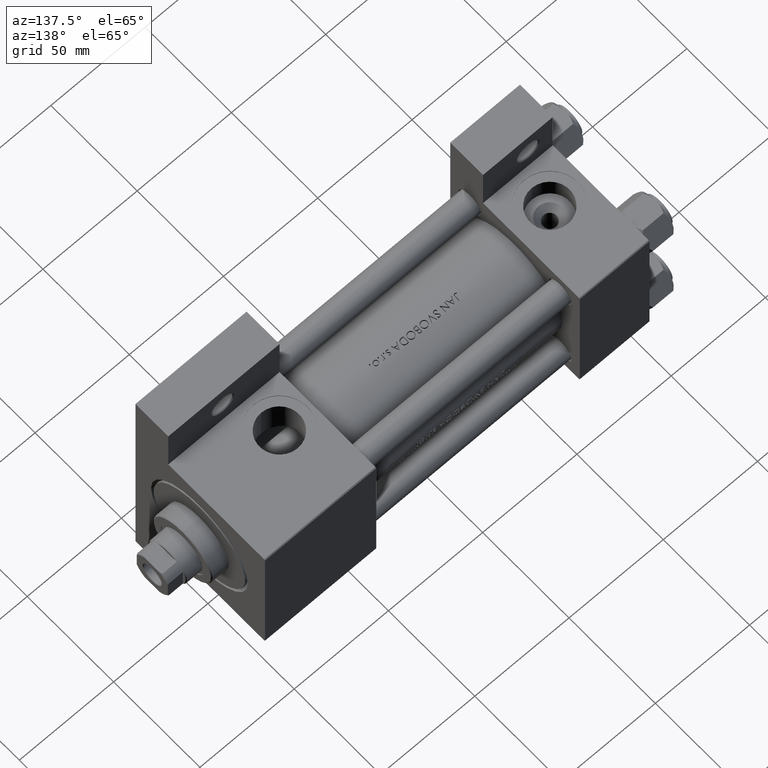
[diagram: clean part render]
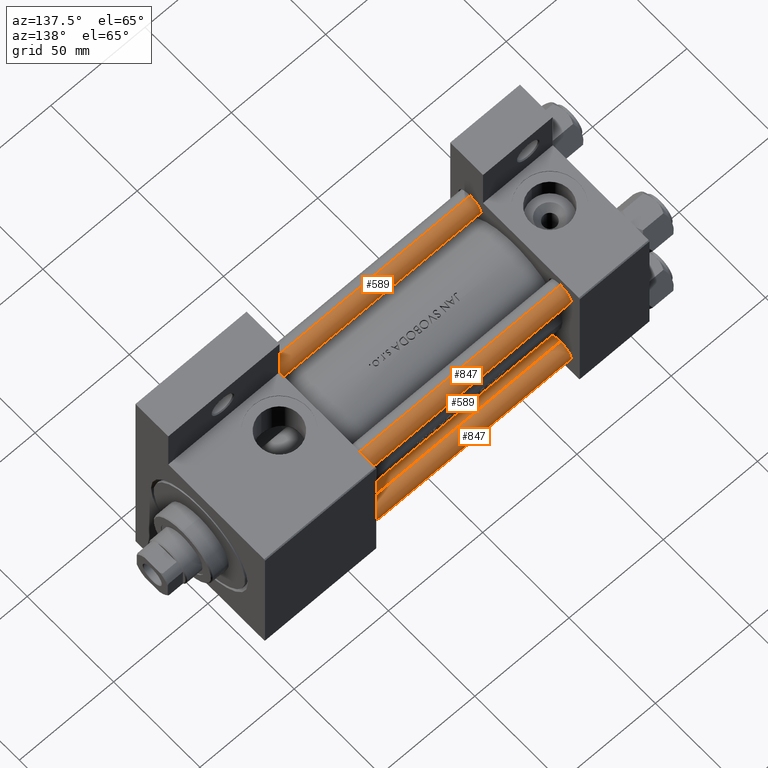
[diagram: same view with one multi-face feature highlighted, each face labeled with its STEP entity id]
A machine part, auxiliary view. The highlighted faces form ONE feature: a constant-radius fillet chain: 4 tangent blend faces with common blend radius 6 mm. The faces share edges in the B-rep.
Their STEP definitions:
[1] entity #847 (Cylinder):
#847 = ADVANCED_FACE ( 'NONE', ( #46976 ), #43228, .T. ) ;
#3511 = EDGE_CURVE ( 'NONE', #41787, #6512, #18610, .T. ) ;
#3839 = EDGE_LOOP ( 'NONE', ( #29183, #35820, #38645, #16692 ) ) ;
#4204 = DIRECTION ( 'NONE',  ( 0.000000000000000000, 0.000000000000000000, -1.000000000000000000 ) ) ;
#5875 = DIRECTION ( 'NONE',  ( -0.000000000000000000, -0.000000000000000000, -1.000000000000000000 ) ) ;
#5928 = VERTEX_POINT ( 'NONE', #34669 ) ;
#6099 = CARTESIAN_POINT ( 'NONE',  ( 6.000000000000000888, 7.347880794884120722E-16, 0.5000000000000559552 ) ) ;
#6512 = VERTEX_POINT ( 'NONE', #6099 ) ;
#9141 = CARTESIAN_POINT ( 'NONE',  ( 0.000000000000000000, 0.000000000000000000, 174.0000000000000000 ) ) ;
#13219 = EDGE_CURVE ( 'NONE', #6512, #5928, #21093, .T. ) ;
#14877 = CARTESIAN_POINT ( 'NONE',  ( 6.000000000000000888, 7.347880794884120722E-16, 174.0000000000000000 ) ) ;
#16692 = ORIENTED_EDGE ( 'NONE', *, *, #21007, .F. ) ;
#16946 = VECTOR ( 'NONE', #5875, 1000.000000000000000 ) ;
#17820 = CARTESIAN_POINT ( 'NONE',  ( -6.000000000000000888, 0.000000000000000000, 174.0000000000000000 ) ) ;
#18610 = LINE ( 'NONE', #14877, #45523 ) ;
#19424 = VERTEX_POINT ( 'NONE', #38032 ) ;
#21007 = EDGE_CURVE ( 'NONE', #19424, #5928, #29267, .T. ) ;
#21093 = CIRCLE ( 'NONE', #24286, 6.000000000000000888 ) ;
#21327 = DIRECTION ( 'NONE',  ( -1.000000000000000000, 0.000000000000000000, 0.000000000000000000 ) ) ;
#24286 = AXIS2_PLACEMENT_3D ( 'NONE', #43708, #39737, #24559 ) ;
#24319 = DIRECTION ( 'NONE',  ( -0.000000000000000000, -0.000000000000000000, -1.000000000000000000 ) ) ;
#24559 = DIRECTION ( 'NONE',  ( 1.000000000000000000, 0.000000000000000000, 0.000000000000000000 ) ) ;
#24790 = AXIS2_PLACEMENT_3D ( 'NONE', #9141, #24319, #21327 ) ;
#27091 = DIRECTION ( 'NONE',  ( 1.000000000000000000, 0.000000000000000000, 0.000000000000000000 ) ) ;
#29183 = ORIENTED_EDGE ( 'NONE', *, *, #47872, .T. ) ;
#29267 = LINE ( 'NONE', #17820, #16946 ) ;
#30051 = DIRECTION ( 'NONE',  ( -0.000000000000000000, -0.000000000000000000, -1.000000000000000000 ) ) ;
#34669 = CARTESIAN_POINT ( 'NONE',  ( -6.000000000000000888, 0.000000000000000000, 0.5000000000000559552 ) ) ;
#35820 = ORIENTED_EDGE ( 'NONE', *, *, #3511, .T. ) ;
#35982 = CIRCLE ( 'NONE', #46281, 6.000000000000000888 ) ;
#38032 = CARTESIAN_POINT ( 'NONE',  ( -6.000000000000000888, 0.000000000000000000, 173.5000000000000000 ) ) ;
#38302 = CARTESIAN_POINT ( 'NONE',  ( 0.000000000000000000, 0.000000000000000000, 173.5000000000000000 ) ) ;
#38316 = CARTESIAN_POINT ( 'NONE',  ( 6.000000000000000888, 7.347880794884120722E-16, 173.5000000000000000 ) ) ;
#38645 = ORIENTED_EDGE ( 'NONE', *, *, #13219, .T. ) ;
#39737 = DIRECTION ( 'NONE',  ( -0.000000000000000000, -0.000000000000000000, 1.000000000000000000 ) ) ;
#41787 = VERTEX_POINT ( 'NONE', #38316 ) ;
#43228 = CYLINDRICAL_SURFACE ( 'NONE', #24790, 6.000000000000000888 ) ;
#43708 = CARTESIAN_POINT ( 'NONE',  ( 0.000000000000000000, 0.000000000000000000, 0.5000000000000559552 ) ) ;
#45523 = VECTOR ( 'NONE', #30051, 1000.000000000000000 ) ;
#46281 = AXIS2_PLACEMENT_3D ( 'NONE', #38302, #4204, #27091 ) ;
#46976 = FACE_OUTER_BOUND ( 'NONE', #3839, .T. ) ;
#47872 = EDGE_CURVE ( 'NONE', #19424, #41787, #35982, .T. ) ;
[2] entity #589 (Cylinder):
#589 = ADVANCED_FACE ( 'NONE', ( #10416 ), #40056, .T. ) ;
#675 = CIRCLE ( 'NONE', #38053, 6.000000000000000888 ) ;
#3511 = EDGE_CURVE ( 'NONE', #41787, #6512, #18610, .T. ) ;
#4480 = AXIS2_PLACEMENT_3D ( 'NONE', #27052, #22601, #41512 ) ;
#5875 = DIRECTION ( 'NONE',  ( -0.000000000000000000, -0.000000000000000000, -1.000000000000000000 ) ) ;
#5928 = VERTEX_POINT ( 'NONE', #34669 ) ;
#6099 = CARTESIAN_POINT ( 'NONE',  ( 6.000000000000000888, 7.347880794884120722E-16, 0.5000000000000559552 ) ) ;
#6512 = VERTEX_POINT ( 'NONE', #6099 ) ;
#9697 = AXIS2_PLACEMENT_3D ( 'NONE', #33315, #45000, #25840 ) ;
#10416 = FACE_OUTER_BOUND ( 'NONE', #30551, .T. ) ;
#11243 = ORIENTED_EDGE ( 'NONE', *, *, #37401, .T. ) ;
#12286 = DIRECTION ( 'NONE',  ( 0.000000000000000000, 0.000000000000000000, -1.000000000000000000 ) ) ;
#14877 = CARTESIAN_POINT ( 'NONE',  ( 6.000000000000000888, 7.347880794884120722E-16, 174.0000000000000000 ) ) ;
#16946 = VECTOR ( 'NONE', #5875, 1000.000000000000000 ) ;
#17820 = CARTESIAN_POINT ( 'NONE',  ( -6.000000000000000888, 0.000000000000000000, 174.0000000000000000 ) ) ;
#18610 = LINE ( 'NONE', #14877, #45523 ) ;
#19424 = VERTEX_POINT ( 'NONE', #38032 ) ;
#21007 = EDGE_CURVE ( 'NONE', #19424, #5928, #29267, .T. ) ;
#22601 = DIRECTION ( 'NONE',  ( -0.000000000000000000, -0.000000000000000000, 1.000000000000000000 ) ) ;
#25840 = DIRECTION ( 'NONE',  ( -1.000000000000000000, 0.000000000000000000, 0.000000000000000000 ) ) ;
#27052 = CARTESIAN_POINT ( 'NONE',  ( 0.000000000000000000, 0.000000000000000000, 0.5000000000000559552 ) ) ;
#29267 = LINE ( 'NONE', #17820, #16946 ) ;
#30051 = DIRECTION ( 'NONE',  ( -0.000000000000000000, -0.000000000000000000, -1.000000000000000000 ) ) ;
#30551 = EDGE_LOOP ( 'NONE', ( #47265, #11243, #47430, #35164 ) ) ;
#31946 = CARTESIAN_POINT ( 'NONE',  ( 0.000000000000000000, 0.000000000000000000, 173.5000000000000000 ) ) ;
#32297 = EDGE_CURVE ( 'NONE', #5928, #6512, #49022, .T. ) ;
#33315 = CARTESIAN_POINT ( 'NONE',  ( 0.000000000000000000, 0.000000000000000000, 174.0000000000000000 ) ) ;
#34669 = CARTESIAN_POINT ( 'NONE',  ( -6.000000000000000888, 0.000000000000000000, 0.5000000000000559552 ) ) ;
#35164 = ORIENTED_EDGE ( 'NONE', *, *, #32297, .T. ) ;
#35926 = DIRECTION ( 'NONE',  ( 1.000000000000000000, 0.000000000000000000, 0.000000000000000000 ) ) ;
#37401 = EDGE_CURVE ( 'NONE', #41787, #19424, #675, .T. ) ;
#38032 = CARTESIAN_POINT ( 'NONE',  ( -6.000000000000000888, 0.000000000000000000, 173.5000000000000000 ) ) ;
#38053 = AXIS2_PLACEMENT_3D ( 'NONE', #31946, #12286, #35926 ) ;
#38316 = CARTESIAN_POINT ( 'NONE',  ( 6.000000000000000888, 7.347880794884120722E-16, 173.5000000000000000 ) ) ;
#40056 = CYLINDRICAL_SURFACE ( 'NONE', #9697, 6.000000000000000888 ) ;
#41512 = DIRECTION ( 'NONE',  ( 1.000000000000000000, 0.000000000000000000, 0.000000000000000000 ) ) ;
#41787 = VERTEX_POINT ( 'NONE', #38316 ) ;
#45000 = DIRECTION ( 'NONE',  ( -0.000000000000000000, -0.000000000000000000, -1.000000000000000000 ) ) ;
#45523 = VECTOR ( 'NONE', #30051, 1000.000000000000000 ) ;
#47265 = ORIENTED_EDGE ( 'NONE', *, *, #3511, .F. ) ;
#47430 = ORIENTED_EDGE ( 'NONE', *, *, #21007, .T. ) ;
#49022 = CIRCLE ( 'NONE', #4480, 6.000000000000000888 ) ;
[3] entity #847 (Cylinder):
#847 = ADVANCED_FACE ( 'NONE', ( #46976 ), #43228, .T. ) ;
#3511 = EDGE_CURVE ( 'NONE', #41787, #6512, #18610, .T. ) ;
#3839 = EDGE_LOOP ( 'NONE', ( #29183, #35820, #38645, #16692 ) ) ;
#4204 = DIRECTION ( 'NONE',  ( 0.000000000000000000, 0.000000000000000000, -1.000000000000000000 ) ) ;
#5875 = DIRECTION ( 'NONE',  ( -0.000000000000000000, -0.000000000000000000, -1.000000000000000000 ) ) ;
#5928 = VERTEX_POINT ( 'NONE', #34669 ) ;
#6099 = CARTESIAN_POINT ( 'NONE',  ( 6.000000000000000888, 7.347880794884120722E-16, 0.5000000000000559552 ) ) ;
#6512 = VERTEX_POINT ( 'NONE', #6099 ) ;
#9141 = CARTESIAN_POINT ( 'NONE',  ( 0.000000000000000000, 0.000000000000000000, 174.0000000000000000 ) ) ;
#13219 = EDGE_CURVE ( 'NONE', #6512, #5928, #21093, .T. ) ;
#14877 = CARTESIAN_POINT ( 'NONE',  ( 6.000000000000000888, 7.347880794884120722E-16, 174.0000000000000000 ) ) ;
#16692 = ORIENTED_EDGE ( 'NONE', *, *, #21007, .F. ) ;
#16946 = VECTOR ( 'NONE', #5875, 1000.000000000000000 ) ;
#17820 = CARTESIAN_POINT ( 'NONE',  ( -6.000000000000000888, 0.000000000000000000, 174.0000000000000000 ) ) ;
#18610 = LINE ( 'NONE', #14877, #45523 ) ;
#19424 = VERTEX_POINT ( 'NONE', #38032 ) ;
#21007 = EDGE_CURVE ( 'NONE', #19424, #5928, #29267, .T. ) ;
#21093 = CIRCLE ( 'NONE', #24286, 6.000000000000000888 ) ;
#21327 = DIRECTION ( 'NONE',  ( -1.000000000000000000, 0.000000000000000000, 0.000000000000000000 ) ) ;
#24286 = AXIS2_PLACEMENT_3D ( 'NONE', #43708, #39737, #24559 ) ;
#24319 = DIRECTION ( 'NONE',  ( -0.000000000000000000, -0.000000000000000000, -1.000000000000000000 ) ) ;
#24559 = DIRECTION ( 'NONE',  ( 1.000000000000000000, 0.000000000000000000, 0.000000000000000000 ) ) ;
#24790 = AXIS2_PLACEMENT_3D ( 'NONE', #9141, #24319, #21327 ) ;
#27091 = DIRECTION ( 'NONE',  ( 1.000000000000000000, 0.000000000000000000, 0.000000000000000000 ) ) ;
#29183 = ORIENTED_EDGE ( 'NONE', *, *, #47872, .T. ) ;
#29267 = LINE ( 'NONE', #17820, #16946 ) ;
#30051 = DIRECTION ( 'NONE',  ( -0.000000000000000000, -0.000000000000000000, -1.000000000000000000 ) ) ;
#34669 = CARTESIAN_POINT ( 'NONE',  ( -6.000000000000000888, 0.000000000000000000, 0.5000000000000559552 ) ) ;
#35820 = ORIENTED_EDGE ( 'NONE', *, *, #3511, .T. ) ;
#35982 = CIRCLE ( 'NONE', #46281, 6.000000000000000888 ) ;
#38032 = CARTESIAN_POINT ( 'NONE',  ( -6.000000000000000888, 0.000000000000000000, 173.5000000000000000 ) ) ;
#38302 = CARTESIAN_POINT ( 'NONE',  ( 0.000000000000000000, 0.000000000000000000, 173.5000000000000000 ) ) ;
#38316 = CARTESIAN_POINT ( 'NONE',  ( 6.000000000000000888, 7.347880794884120722E-16, 173.5000000000000000 ) ) ;
#38645 = ORIENTED_EDGE ( 'NONE', *, *, #13219, .T. ) ;
#39737 = DIRECTION ( 'NONE',  ( -0.000000000000000000, -0.000000000000000000, 1.000000000000000000 ) ) ;
#41787 = VERTEX_POINT ( 'NONE', #38316 ) ;
#43228 = CYLINDRICAL_SURFACE ( 'NONE', #24790, 6.000000000000000888 ) ;
#43708 = CARTESIAN_POINT ( 'NONE',  ( 0.000000000000000000, 0.000000000000000000, 0.5000000000000559552 ) ) ;
#45523 = VECTOR ( 'NONE', #30051, 1000.000000000000000 ) ;
#46281 = AXIS2_PLACEMENT_3D ( 'NONE', #38302, #4204, #27091 ) ;
#46976 = FACE_OUTER_BOUND ( 'NONE', #3839, .T. ) ;
#47872 = EDGE_CURVE ( 'NONE', #19424, #41787, #35982, .T. ) ;
[4] entity #589 (Cylinder):
#589 = ADVANCED_FACE ( 'NONE', ( #10416 ), #40056, .T. ) ;
#675 = CIRCLE ( 'NONE', #38053, 6.000000000000000888 ) ;
#3511 = EDGE_CURVE ( 'NONE', #41787, #6512, #18610, .T. ) ;
#4480 = AXIS2_PLACEMENT_3D ( 'NONE', #27052, #22601, #41512 ) ;
#5875 = DIRECTION ( 'NONE',  ( -0.000000000000000000, -0.000000000000000000, -1.000000000000000000 ) ) ;
#5928 = VERTEX_POINT ( 'NONE', #34669 ) ;
#6099 = CARTESIAN_POINT ( 'NONE',  ( 6.000000000000000888, 7.347880794884120722E-16, 0.5000000000000559552 ) ) ;
#6512 = VERTEX_POINT ( 'NONE', #6099 ) ;
#9697 = AXIS2_PLACEMENT_3D ( 'NONE', #33315, #45000, #25840 ) ;
#10416 = FACE_OUTER_BOUND ( 'NONE', #30551, .T. ) ;
#11243 = ORIENTED_EDGE ( 'NONE', *, *, #37401, .T. ) ;
#12286 = DIRECTION ( 'NONE',  ( 0.000000000000000000, 0.000000000000000000, -1.000000000000000000 ) ) ;
#14877 = CARTESIAN_POINT ( 'NONE',  ( 6.000000000000000888, 7.347880794884120722E-16, 174.0000000000000000 ) ) ;
#16946 = VECTOR ( 'NONE', #5875, 1000.000000000000000 ) ;
#17820 = CARTESIAN_POINT ( 'NONE',  ( -6.000000000000000888, 0.000000000000000000, 174.0000000000000000 ) ) ;
#18610 = LINE ( 'NONE', #14877, #45523 ) ;
#19424 = VERTEX_POINT ( 'NONE', #38032 ) ;
#21007 = EDGE_CURVE ( 'NONE', #19424, #5928, #29267, .T. ) ;
#22601 = DIRECTION ( 'NONE',  ( -0.000000000000000000, -0.000000000000000000, 1.000000000000000000 ) ) ;
#25840 = DIRECTION ( 'NONE',  ( -1.000000000000000000, 0.000000000000000000, 0.000000000000000000 ) ) ;
#27052 = CARTESIAN_POINT ( 'NONE',  ( 0.000000000000000000, 0.000000000000000000, 0.5000000000000559552 ) ) ;
#29267 = LINE ( 'NONE', #17820, #16946 ) ;
#30051 = DIRECTION ( 'NONE',  ( -0.000000000000000000, -0.000000000000000000, -1.000000000000000000 ) ) ;
#30551 = EDGE_LOOP ( 'NONE', ( #47265, #11243, #47430, #35164 ) ) ;
#31946 = CARTESIAN_POINT ( 'NONE',  ( 0.000000000000000000, 0.000000000000000000, 173.5000000000000000 ) ) ;
#32297 = EDGE_CURVE ( 'NONE', #5928, #6512, #49022, .T. ) ;
#33315 = CARTESIAN_POINT ( 'NONE',  ( 0.000000000000000000, 0.000000000000000000, 174.0000000000000000 ) ) ;
#34669 = CARTESIAN_POINT ( 'NONE',  ( -6.000000000000000888, 0.000000000000000000, 0.5000000000000559552 ) ) ;
#35164 = ORIENTED_EDGE ( 'NONE', *, *, #32297, .T. ) ;
#35926 = DIRECTION ( 'NONE',  ( 1.000000000000000000, 0.000000000000000000, 0.000000000000000000 ) ) ;
#37401 = EDGE_CURVE ( 'NONE', #41787, #19424, #675, .T. ) ;
#38032 = CARTESIAN_POINT ( 'NONE',  ( -6.000000000000000888, 0.000000000000000000, 173.5000000000000000 ) ) ;
#38053 = AXIS2_PLACEMENT_3D ( 'NONE', #31946, #12286, #35926 ) ;
#38316 = CARTESIAN_POINT ( 'NONE',  ( 6.000000000000000888, 7.347880794884120722E-16, 173.5000000000000000 ) ) ;
#40056 = CYLINDRICAL_SURFACE ( 'NONE', #9697, 6.000000000000000888 ) ;
#41512 = DIRECTION ( 'NONE',  ( 1.000000000000000000, 0.000000000000000000, 0.000000000000000000 ) ) ;
#41787 = VERTEX_POINT ( 'NONE', #38316 ) ;
#45000 = DIRECTION ( 'NONE',  ( -0.000000000000000000, -0.000000000000000000, -1.000000000000000000 ) ) ;
#45523 = VECTOR ( 'NONE', #30051, 1000.000000000000000 ) ;
#47265 = ORIENTED_EDGE ( 'NONE', *, *, #3511, .F. ) ;
#47430 = ORIENTED_EDGE ( 'NONE', *, *, #21007, .T. ) ;
#49022 = CIRCLE ( 'NONE', #4480, 6.000000000000000888 ) ;